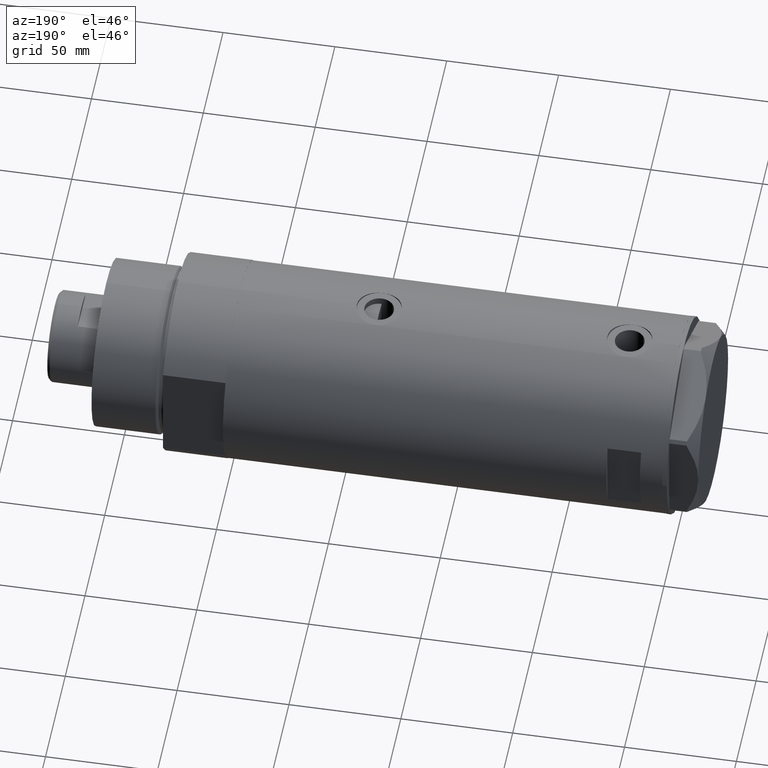
[diagram: clean part render]
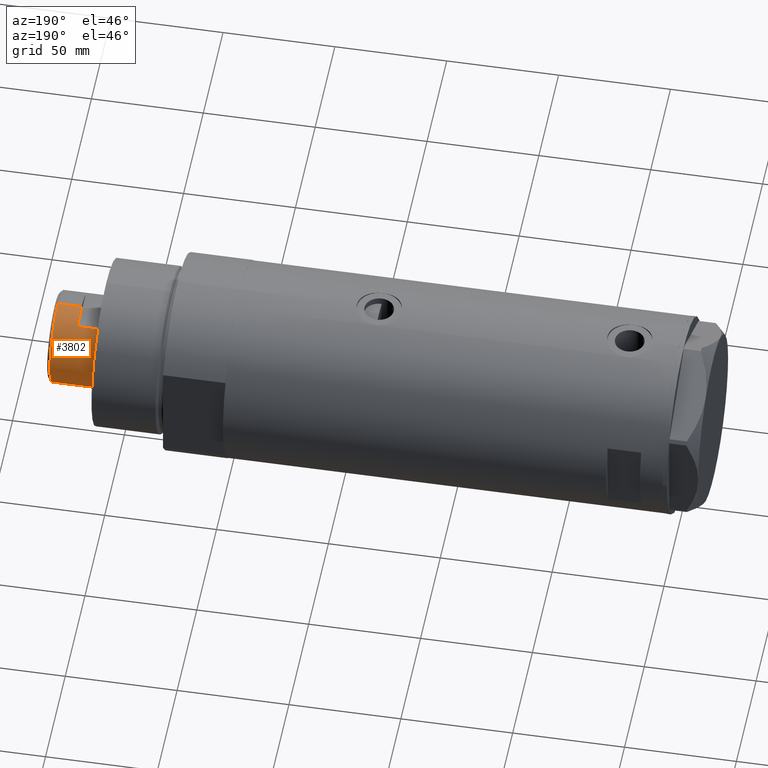
[diagram: same view with one face highlighted and labeled with its STEP entity id]
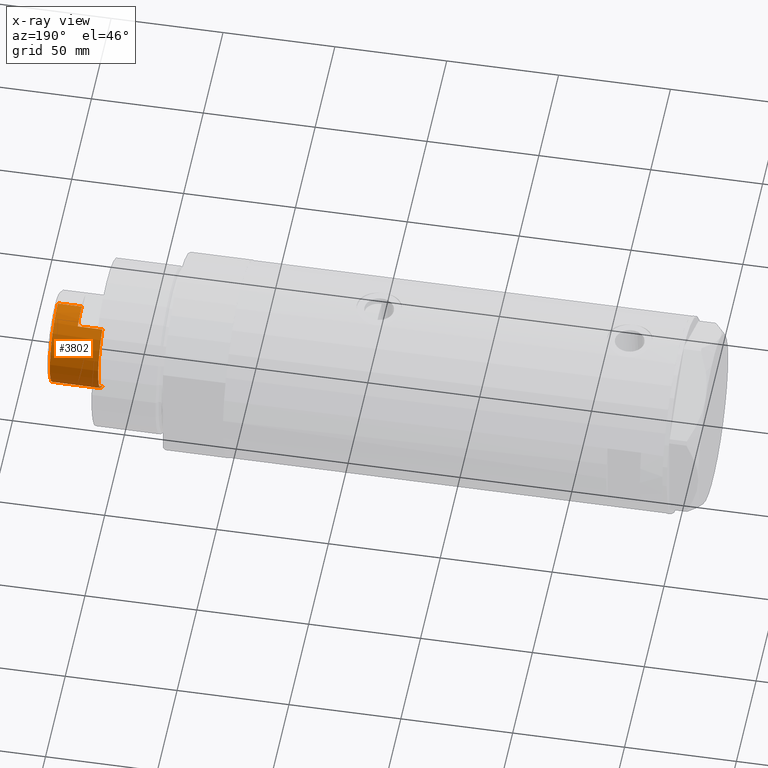
[diagram: x-ray of the same camera — body ghosted, the highlighted face saturated]
A machine part, auxiliary view. The second image highlights one B-rep face of the part: STEP entity #3802.
The next image is the same camera in x-ray: the body ghosted, the highlighted face saturated — about 0% of this face is hidden behind the body in this view.
In plain terms, the highlighted cylindrical surface (partial cylindrical patch) has radius 20.5 mm, axis along (-1, -0, 0).
Its self-contained STEP definition (entity closure, byte-faithful):
#16 = VERTEX_POINT ( 'NONE', #3375 ) ;
#75 = VECTOR ( 'NONE', #949, 1000.000000000000000 ) ;
#115 = LINE ( 'NONE', #4312, #1122 ) ;
#152 = VERTEX_POINT ( 'NONE', #3982 ) ;
#159 = EDGE_CURVE ( 'NONE', #152, #16, #3508, .T. ) ;
#174 = VERTEX_POINT ( 'NONE', #3689 ) ;
#280 = DIRECTION ( 'NONE',  ( 0.000000000000000000, 0.000000000000000000, 1.000000000000000000 ) ) ;
#452 = AXIS2_PLACEMENT_3D ( 'NONE', #1582, #3301, #1162 ) ;
#481 = CARTESIAN_POINT ( 'NONE',  ( -17.97852886083842705, 9.849999999999997868, 241.3000000000000114 ) ) ;
#581 = ORIENTED_EDGE ( 'NONE', *, *, #4020, .F. ) ;
#604 = CARTESIAN_POINT ( 'NONE',  ( 0.000000000000000000, 0.000000000000000000, 230.3000000000000114 ) ) ;
#670 = VECTOR ( 'NONE', #3710, 1000.000000000000000 ) ;
#674 = AXIS2_PLACEMENT_3D ( 'NONE', #1003, #2832, #1779 ) ;
#762 = EDGE_CURVE ( 'NONE', #3296, #16, #3033, .T. ) ;
#949 = DIRECTION ( 'NONE',  ( -0.000000000000000000, -0.000000000000000000, -1.000000000000000000 ) ) ;
#979 = CIRCLE ( 'NONE', #2756, 20.49999999999998934 ) ;
#1003 = CARTESIAN_POINT ( 'NONE',  ( 0.000000000000000000, 0.000000000000000000, 241.3000000000000114 ) ) ;
#1025 = FACE_OUTER_BOUND ( 'NONE', #1588, .T. ) ;
#1122 = VECTOR ( 'NONE', #3451, 1000.000000000000000 ) ;
#1162 = DIRECTION ( 'NONE',  ( 1.000000000000000000, 0.000000000000000000, 0.000000000000000000 ) ) ;
#1379 = CARTESIAN_POINT ( 'NONE',  ( 0.000000000000000000, 0.000000000000000000, 241.3000000000000114 ) ) ;
#1400 = DIRECTION ( 'NONE',  ( 1.000000000000000000, 0.000000000000000000, 0.000000000000000000 ) ) ;
#1412 = EDGE_CURVE ( 'NONE', #3652, #174, #979, .T. ) ;
#1489 = AXIS2_PLACEMENT_3D ( 'NONE', #1379, #4243, #1400 ) ;
#1542 = VERTEX_POINT ( 'NONE', #3827 ) ;
#1582 = CARTESIAN_POINT ( 'NONE',  ( 0.000000000000000000, 0.000000000000000000, 241.3000000000000114 ) ) ;
#1588 = EDGE_LOOP ( 'NONE', ( #1825, #1885, #2637, #2190, #2455, #581, #2551, #2980 ) ) ;
#1697 = CARTESIAN_POINT ( 'NONE',  ( 20.50000000000000355, 2.510525938252074481E-15, 241.3000000000000114 ) ) ;
#1772 = AXIS2_PLACEMENT_3D ( 'NONE', #3796, #3080, #3376 ) ;
#1779 = DIRECTION ( 'NONE',  ( -1.000000000000000000, 0.000000000000000000, 0.000000000000000000 ) ) ;
#1825 = ORIENTED_EDGE ( 'NONE', *, *, #2176, .T. ) ;
#1885 = ORIENTED_EDGE ( 'NONE', *, *, #3110, .T. ) ;
#1938 = CARTESIAN_POINT ( 'NONE',  ( 20.50000000000000000, 2.510525938252074481E-15, 241.3000000000000114 ) ) ;
#2176 = EDGE_CURVE ( 'NONE', #152, #1542, #2597, .T. ) ;
#2190 = ORIENTED_EDGE ( 'NONE', *, *, #2852, .T. ) ;
#2300 = VECTOR ( 'NONE', #4142, 1000.000000000000000 ) ;
#2320 = CARTESIAN_POINT ( 'NONE',  ( 17.97852886083842705, 9.849999999999997868, 241.3000000000000114 ) ) ;
#2343 = DIRECTION ( 'NONE',  ( 1.000000000000000000, 0.000000000000000000, 0.000000000000000000 ) ) ;
#2376 = CIRCLE ( 'NONE', #1489, 20.50000000000000000 ) ;
#2455 = ORIENTED_EDGE ( 'NONE', *, *, #1412, .T. ) ;
#2551 = ORIENTED_EDGE ( 'NONE', *, *, #762, .T. ) ;
#2597 = CIRCLE ( 'NONE', #1772, 20.50000000000000355 ) ;
#2605 = LINE ( 'NONE', #2320, #670 ) ;
#2637 = ORIENTED_EDGE ( 'NONE', *, *, #3740, .T. ) ;
#2756 = AXIS2_PLACEMENT_3D ( 'NONE', #604, #280, #2343 ) ;
#2808 = VERTEX_POINT ( 'NONE', #1938 ) ;
#2816 = VERTEX_POINT ( 'NONE', #3613 ) ;
#2832 = DIRECTION ( 'NONE',  ( -0.000000000000000000, -0.000000000000000000, -1.000000000000000000 ) ) ;
#2852 = EDGE_CURVE ( 'NONE', #2816, #3652, #2605, .T. ) ;
#2853 = CYLINDRICAL_SURFACE ( 'NONE', #674, 20.50000000000000355 ) ;
#2980 = ORIENTED_EDGE ( 'NONE', *, *, #159, .F. ) ;
#3017 = LINE ( 'NONE', #1697, #2300 ) ;
#3033 = CIRCLE ( 'NONE', #452, 20.50000000000000000 ) ;
#3080 = DIRECTION ( 'NONE',  ( 0.000000000000000000, 0.000000000000000000, -1.000000000000000000 ) ) ;
#3110 = EDGE_CURVE ( 'NONE', #1542, #2808, #3017, .T. ) ;
#3296 = VERTEX_POINT ( 'NONE', #481 ) ;
#3301 = DIRECTION ( 'NONE',  ( 0.000000000000000000, 0.000000000000000000, 1.000000000000000000 ) ) ;
#3375 = CARTESIAN_POINT ( 'NONE',  ( -20.50000000000000000, 0.000000000000000000, 241.3000000000000114 ) ) ;
#3376 = DIRECTION ( 'NONE',  ( 1.000000000000000000, 0.000000000000000000, 0.000000000000000000 ) ) ;
#3451 = DIRECTION ( 'NONE',  ( -0.000000000000000000, -0.000000000000000000, -1.000000000000000000 ) ) ;
#3508 = LINE ( 'NONE', #4033, #75 ) ;
#3613 = CARTESIAN_POINT ( 'NONE',  ( 17.97852886083842705, 9.849999999999997868, 241.3000000000000114 ) ) ;
#3652 = VERTEX_POINT ( 'NONE', #4063 ) ;
#3689 = CARTESIAN_POINT ( 'NONE',  ( -17.97852886083842705, 9.849999999999965894, 230.3000000000000114 ) ) ;
#3710 = DIRECTION ( 'NONE',  ( -0.000000000000000000, -0.000000000000000000, -1.000000000000000000 ) ) ;
#3740 = EDGE_CURVE ( 'NONE', #2808, #2816, #2376, .T. ) ;
#3796 = CARTESIAN_POINT ( 'NONE',  ( 0.000000000000000000, 0.000000000000000000, 251.9000000000001194 ) ) ;
#3802 = ADVANCED_FACE ( 'NONE', ( #1025 ), #2853, .T. ) ;
#3827 = CARTESIAN_POINT ( 'NONE',  ( 20.50000000000000355, 2.510525938252074481E-15, 251.9000000000001194 ) ) ;
#3982 = CARTESIAN_POINT ( 'NONE',  ( -20.50000000000000355, 0.000000000000000000, 251.9000000000001194 ) ) ;
#4020 = EDGE_CURVE ( 'NONE', #3296, #174, #115, .T. ) ;
#4033 = CARTESIAN_POINT ( 'NONE',  ( -20.50000000000000355, 0.000000000000000000, 241.3000000000000114 ) ) ;
#4063 = CARTESIAN_POINT ( 'NONE',  ( 17.97852886083842705, 9.849999999999997868, 230.3000000000000114 ) ) ;
#4142 = DIRECTION ( 'NONE',  ( -0.000000000000000000, -0.000000000000000000, -1.000000000000000000 ) ) ;
#4243 = DIRECTION ( 'NONE',  ( 0.000000000000000000, 0.000000000000000000, 1.000000000000000000 ) ) ;
#4312 = CARTESIAN_POINT ( 'NONE',  ( -17.97852886083842705, 9.849999999999997868, 241.3000000000000114 ) ) ;